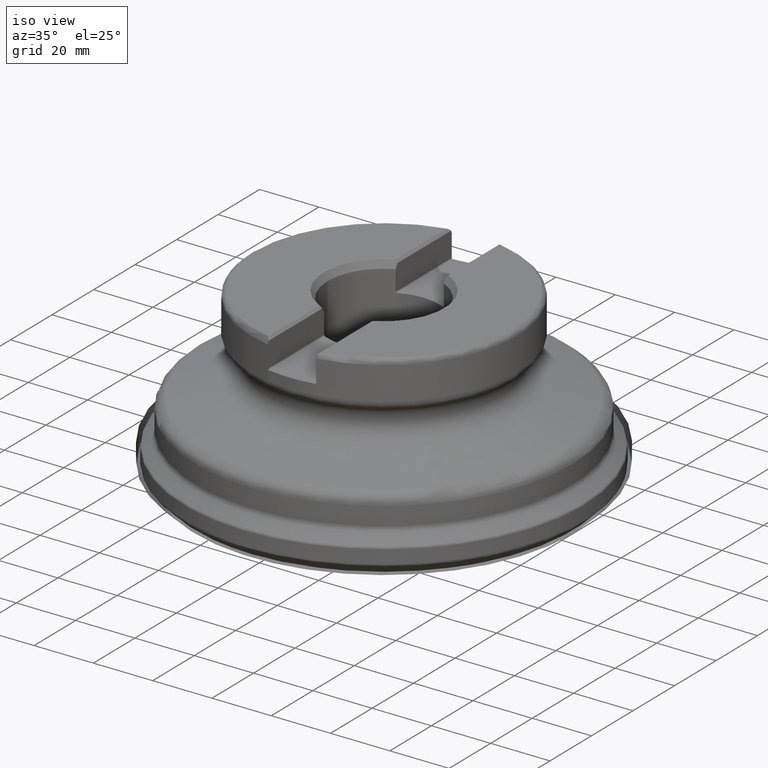
[diagram: clean part render]
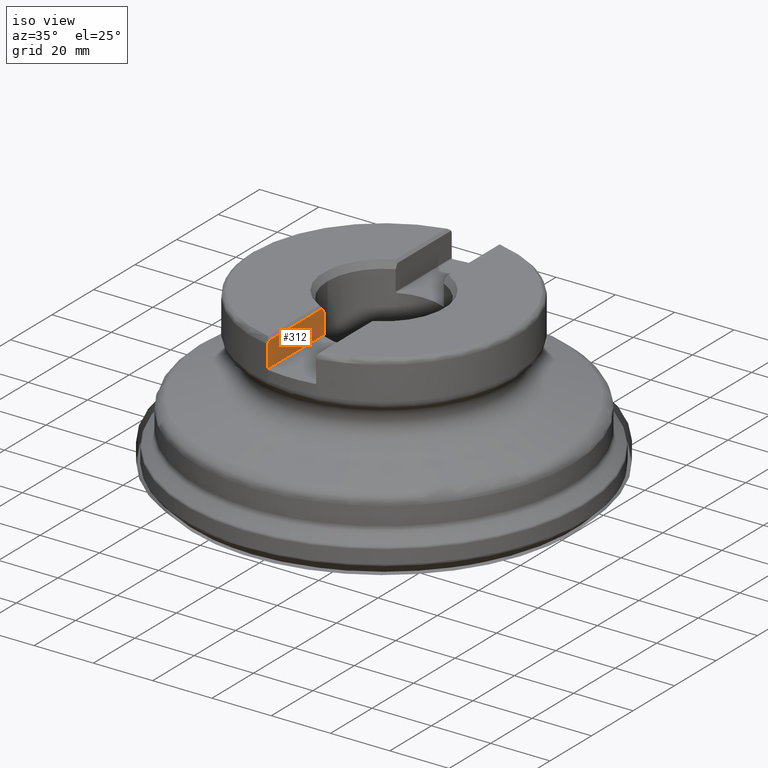
[diagram: same view with one face highlighted and labeled with its STEP entity id]
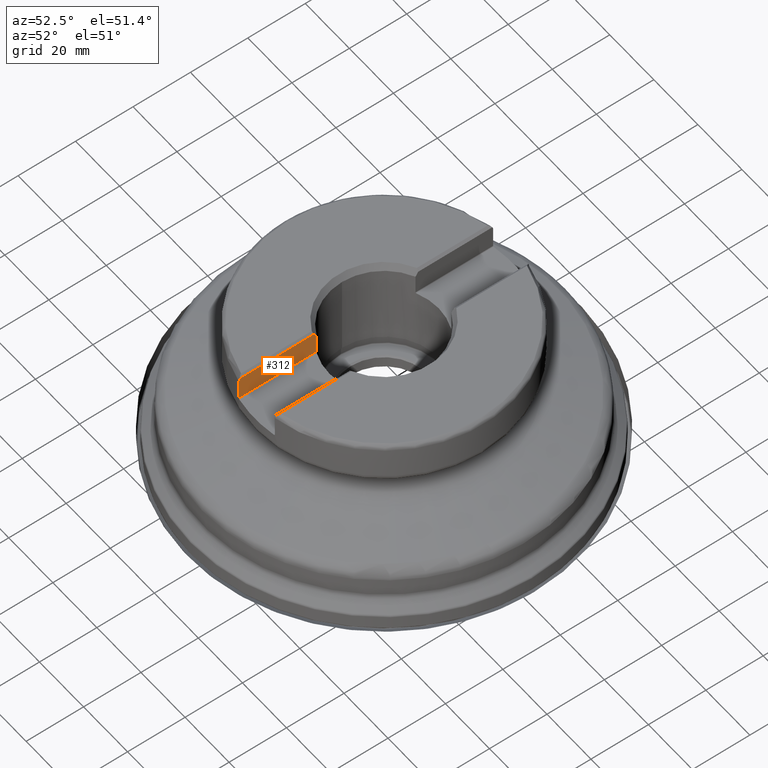
[diagram: same view with one face highlighted and labeled with its STEP entity id]
A machine part, iso view. The second image highlights one B-rep face of the part: STEP entity #312.
A second angle (auxiliary view) of the same face is appended — the face is thin or edge-on in the first view.
In plain terms, the highlighted planar face has unit normal (1, -0, -0).
Its self-contained STEP definition (entity closure, byte-faithful):
#164=PLANE('',#1178);
#182=LINE('',#1761,#214);
#186=LINE('',#1841,#218);
#202=LINE('',#2116,#234);
#203=LINE('',#2117,#235);
#214=VECTOR('',#1266,1.);
#218=VECTOR('',#1278,1.);
#234=VECTOR('',#1390,1.);
#235=VECTOR('',#1391,1.);
#265=FACE_OUTER_BOUND('',#518,.T.);
#312=ADVANCED_FACE('',(#265),#164,.T.);
#518=EDGE_LOOP('',(#707,#708,#709,#710,#711,#712));
#707=ORIENTED_EDGE('',*,*,#922,.T.);
#708=ORIENTED_EDGE('',*,*,#979,.T.);
#709=ORIENTED_EDGE('',*,*,#933,.T.);
#710=ORIENTED_EDGE('',*,*,#900,.F.);
#711=ORIENTED_EDGE('',*,*,#980,.T.);
#712=ORIENTED_EDGE('',*,*,#910,.F.);
#811=VERTEX_POINT('',#1618);
#812=VERTEX_POINT('',#1623);
#821=VERTEX_POINT('',#1686);
#822=VERTEX_POINT('',#1687);
#832=VERTEX_POINT('',#1760);
#841=VERTEX_POINT('',#1842);
#900=EDGE_CURVE('',#811,#812,#1071,.T.);
#910=EDGE_CURVE('',#821,#822,#1077,.T.);
#922=EDGE_CURVE('',#821,#832,#182,.T.);
#933=EDGE_CURVE('',#841,#812,#186,.T.);
#979=EDGE_CURVE('',#832,#841,#202,.T.);
#980=EDGE_CURVE('',#811,#822,#203,.T.);
#1071=B_SPLINE_CURVE_WITH_KNOTS('',3,(#1619,#1620,#1621,#1622),
 .UNSPECIFIED.,.F.,.F.,(4,4),(0.,1.),.UNSPECIFIED.);
#1077=B_SPLINE_CURVE_WITH_KNOTS('',3,(#1676,#1677,#1678,#1679,#1680,#1681,
#1682,#1683,#1684,#1685),.UNSPECIFIED.,.F.,.F.,(4,3,3,4),(0.,0.299336012974424,
0.932610815884903,1.),.UNSPECIFIED.);
#1178=AXIS2_PLACEMENT_3D('',#2118,#1392,#1393);
#1266=DIRECTION('',(-1.17145536458253E-15,-1.33226762955019E-15,-1.));
#1278=DIRECTION('',(1.17145536458253E-15,1.33226762955019E-15,1.));
#1390=DIRECTION('',(3.16413562018169E-15,1.,-1.33226762955019E-15));
#1391=DIRECTION('',(-3.16413562018169E-15,-1.,1.33226762955019E-15));
#1392=DIRECTION('',(1.,-3.1641356201817E-15,-6.475331496564E-16));
#1393=DIRECTION('',(6.47051856539349E-16,1.33226762955019E-15,1.));
#1618=CARTESIAN_POINT('',(-8.13999999999999,-18.1765912063891,56.35));
#1619=CARTESIAN_POINT('',(-8.13999999999999,-18.1765912063891,56.35));
#1620=CARTESIAN_POINT('',(-8.13999999999999,-17.8598744993871,55.8493417591438));
#1621=CARTESIAN_POINT('',(-8.13999999999999,-17.5421734077316,55.34930720179));
#1622=CARTESIAN_POINT('',(-8.13999999999999,-17.2233243016555,54.85));
#1623=CARTESIAN_POINT('',(-8.13999999999999,-17.2233243016555,54.85));
#1676=CARTESIAN_POINT('',(-8.14000000000008,-44.2576592241387,55.3500000000001));
#1677=CARTESIAN_POINT('',(-8.14000000000008,-44.2576592241387,55.4544948400479));
#1678=CARTESIAN_POINT('',(-8.14000000000007,-44.2492779563328,55.559319201938));
#1679=CARTESIAN_POINT('',(-8.14000000000007,-44.2326839630025,55.6624880488928));
#1680=CARTESIAN_POINT('',(-8.14000000000007,-44.1977104254325,55.8799269421844));
#1681=CARTESIAN_POINT('',(-8.14000000000007,-44.1247423373813,56.0942713174674));
#1682=CARTESIAN_POINT('',(-8.14000000000007,-44.020088896008,56.2880507742082));
#1683=CARTESIAN_POINT('',(-8.14000000000007,-44.0088261938033,56.3089051320393));
#1684=CARTESIAN_POINT('',(-8.14000000000007,-43.997188687675,56.3295613638179));
#1685=CARTESIAN_POINT('',(-8.14000000000007,-43.9851880688365,56.3500000000001));
#1686=CARTESIAN_POINT('',(-8.14000000000008,-44.2576592241387,55.3500000000001));
#1687=CARTESIAN_POINT('',(-8.14000000000007,-43.9851880688365,56.3500000000001));
#1760=CARTESIAN_POINT('',(-8.14000000000009,-44.2576592241387,48.0200000000001));
#1761=CARTESIAN_POINT('',(-8.14000000000007,-44.2576592241387,57.3500000000001));
#1841=CARTESIAN_POINT('',(-8.13999999999999,-17.2233243016555,57.35));
#1842=CARTESIAN_POINT('',(-8.14,-17.2233243016555,48.02));
#2116=CARTESIAN_POINT('',(-8.14,-17.2233243016555,48.02));
#2117=CARTESIAN_POINT('',(-8.13999999999973,65.0000000000001,56.3499999999999));
#2118=CARTESIAN_POINT('',(-8.13999999999973,65.0000000000001,47.6199999999999));